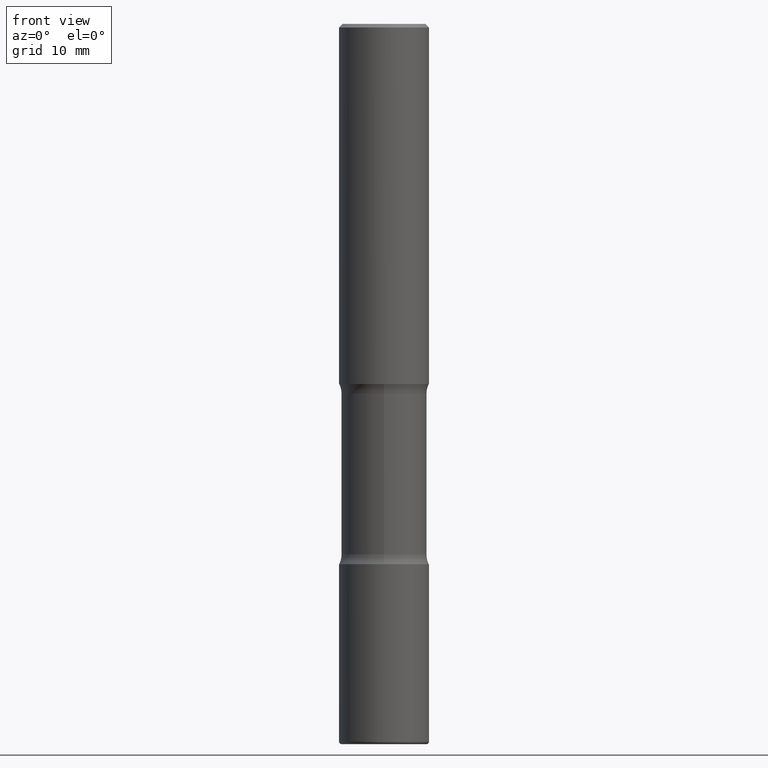
[diagram: clean part render]
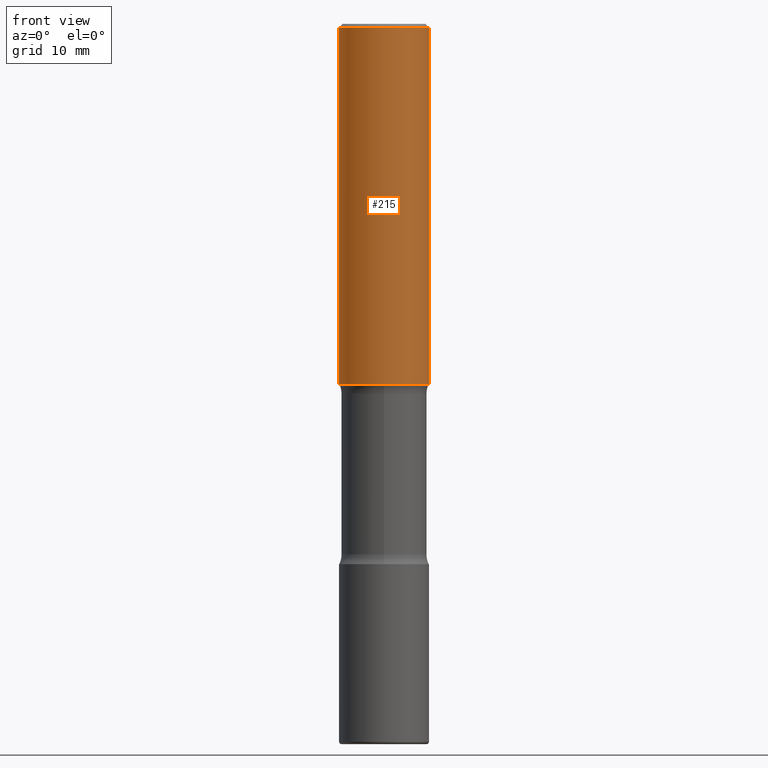
[diagram: same view with one face highlighted and labeled with its STEP entity id]
A machine part, front view. The second image highlights one B-rep face of the part: STEP entity #215.
In plain terms, the highlighted cylindrical surface (partial cylindrical patch) has radius 6.35 mm, axis along (-0, 0, 1).
Its self-contained STEP definition (entity closure, byte-faithful):
#9 = CARTESIAN_POINT ( 'NONE',  ( -0.2500000000000000555, 1.776356839400250859E-15, -1.229733772563726866E-29 ) ) ;
#12 = VERTEX_POINT ( 'NONE', #188 ) ;
#25 = EDGE_CURVE ( 'NONE', #523, #381, #559, .T. ) ;
#41 = CARTESIAN_POINT ( 'NONE',  ( -0.2499999999999999167, 1.675911042644703182E-15, -0.02000000000000006981 ) ) ;
#81 = AXIS2_PLACEMENT_3D ( 'NONE', #199, #162, #468 ) ;
#89 = CIRCLE ( 'NONE', #81, 0.2499999999999999167 ) ;
#103 = CARTESIAN_POINT ( 'NONE',  ( 4.890937612370273194E-29, -6.982962677686291165E-15, -2.000000000000000000 ) ) ;
#128 = CARTESIAN_POINT ( 'NONE',  ( 0.2500000000000000555, -1.745740669421567269E-15, 1.219044193948984228E-29 ) ) ;
#152 = EDGE_CURVE ( 'NONE', #360, #12, #89, .T. ) ;
#155 = CARTESIAN_POINT ( 'NONE',  ( -0.2500000000000001665, -1.750039312831323809E-15, -2.000000000000000000 ) ) ;
#162 = DIRECTION ( 'NONE',  ( -2.445468806185136597E-29, 3.491481338843145583E-15, 1.000000000000000000 ) ) ;
#188 = CARTESIAN_POINT ( 'NONE',  ( 0.2499999999999999167, -1.784954126219745400E-15, -0.02000000000000006981 ) ) ;
#199 = CARTESIAN_POINT ( 'NONE',  ( 4.890937612370289799E-31, -6.982962677686315028E-17, -0.02000000000000006981 ) ) ;
#215 = ADVANCED_FACE ( 'NONE', ( #422 ), #379, .T. ) ;
#229 = VECTOR ( 'NONE', #247, 39.37007874015748143 ) ;
#231 = DIRECTION ( 'NONE',  ( 1.000000000000000000, -6.982962677686265922E-15, 0.000000000000000000 ) ) ;
#244 = DIRECTION ( 'NONE',  ( -2.445468806185136597E-29, 3.491481338843145583E-15, 1.000000000000000000 ) ) ;
#247 = DIRECTION ( 'NONE',  ( -2.445468806185136877E-29, 3.491481338843145188E-15, 1.000000000000000000 ) ) ;
#259 = LINE ( 'NONE', #9, #229 ) ;
#263 = ORIENTED_EDGE ( 'NONE', *, *, #152, .F. ) ;
#277 = DIRECTION ( 'NONE',  ( 1.000000000000000000, -6.982962677686267499E-15, 4.876176775795935793E-29 ) ) ;
#289 = CARTESIAN_POINT ( 'NONE',  ( 0.2500000000000001665, -8.728703347107858632E-15, -2.000000000000000000 ) ) ;
#294 = EDGE_CURVE ( 'NONE', #523, #360, #259, .T. ) ;
#311 = ORIENTED_EDGE ( 'NONE', *, *, #25, .T. ) ;
#320 = VECTOR ( 'NONE', #382, 39.37007874015748143 ) ;
#326 = EDGE_LOOP ( 'NONE', ( #521, #311, #469, #263 ) ) ;
#348 = EDGE_CURVE ( 'NONE', #381, #12, #522, .T. ) ;
#360 = VERTEX_POINT ( 'NONE', #41 ) ;
#379 = CYLINDRICAL_SURFACE ( 'NONE', #425, 0.2500000000000000555 ) ;
#381 = VERTEX_POINT ( 'NONE', #289 ) ;
#382 = DIRECTION ( 'NONE',  ( -2.445468806185136877E-29, 3.491481338843145188E-15, 1.000000000000000000 ) ) ;
#422 = FACE_OUTER_BOUND ( 'NONE', #326, .T. ) ;
#425 = AXIS2_PLACEMENT_3D ( 'NONE', #551, #244, #277 ) ;
#461 = AXIS2_PLACEMENT_3D ( 'NONE', #103, #496, #231 ) ;
#468 = DIRECTION ( 'NONE',  ( 1.000000000000000000, -6.982962677686267499E-15, 0.000000000000000000 ) ) ;
#469 = ORIENTED_EDGE ( 'NONE', *, *, #348, .T. ) ;
#496 = DIRECTION ( 'NONE',  ( -2.445468806185136597E-29, 3.491481338843145583E-15, 1.000000000000000000 ) ) ;
#521 = ORIENTED_EDGE ( 'NONE', *, *, #294, .F. ) ;
#522 = LINE ( 'NONE', #128, #320 ) ;
#523 = VERTEX_POINT ( 'NONE', #155 ) ;
#551 = CARTESIAN_POINT ( 'NONE',  ( 0.000000000000000000, 0.000000000000000000, 0.000000000000000000 ) ) ;
#559 = CIRCLE ( 'NONE', #461, 0.2500000000000001665 ) ;